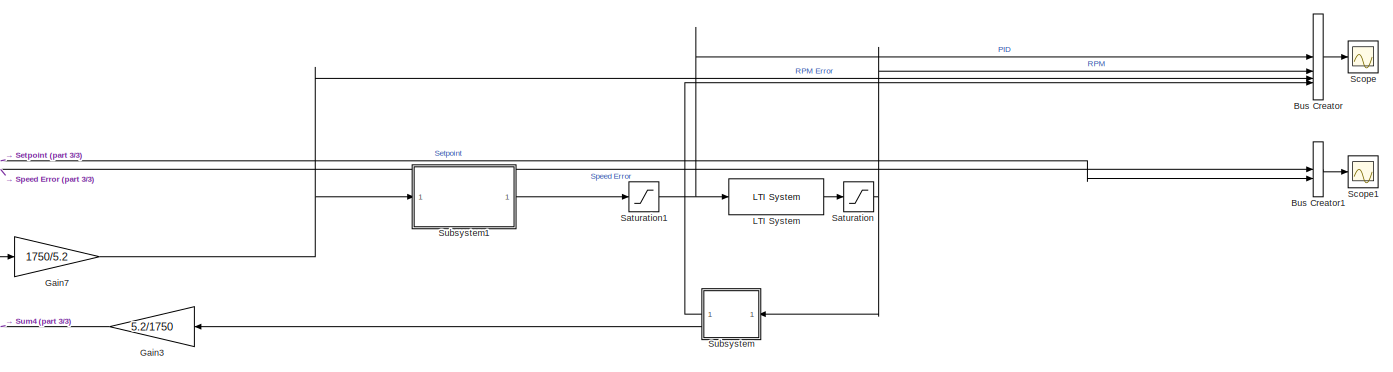
[diagram: root canvas - part 1/3, center side, full height]
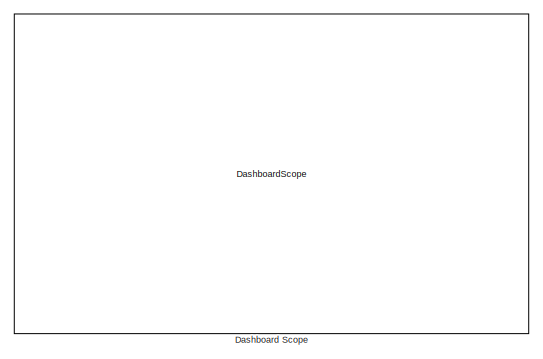
[diagram: root canvas - part 2/3, right side, full height]
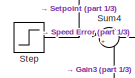
[diagram: root canvas - part 3/3, middle left region]
MODEL slx_830bfff2ffd4
KIND model
CONFIG AbsTol = auto
CONFIG EnableMultiTasking = off
CONFIG FixedStep = auto
CONFIG MaxStep = auto
CONFIG MinStep = auto
CONFIG RelTol = 1e-3
CONFIG SampleTimeConstraint = Unconstrained
CONFIG SolverName = VariableStepAuto
CONFIG StartTime = 0.0
CONFIG StopTime = 100
BLOCK [BusCreator] Bus Creator
  DisplayOption = bar
  InheritFromInputs = on
  Inputs = 4
BLOCK [BusCreator] Bus Creator1
  DisplayOption = bar
  InheritFromInputs = on
  Inputs = 2
BLOCK [DashboardScope] Dashboard Scope
BLOCK [Gain] Gain3
  Gain = 5.2/1750
  NameLocation = top
BLOCK [Gain] Gain7
  Gain = 1750/5.2
BLOCK [Reference] LTI System  REF=cstblocks/LTI System
  SourceBlock = cstblocks/LTI System
  SourceType = LTI Block
BLOCK [Saturate] Saturation
  LowerLimit = 900
  UpperLimit = 3600
BLOCK [Saturate] Saturation1
  LowerLimit = -1
  UpperLimit = 10000
BLOCK [Scope] Scope
  Floating = off
  NumInputPorts = 1
  ScopeSpecificationString = Simulink.scopes.TimeScopeBlockCfg('CurrentConfiguration', extmgr.ConfigurationSet(extmgr.Configuration('Core','General UI',true),extmgr.Configuration('Core','Source UI',true),extmgr.Configuration('Sources','WiredSimulink',true),extmgr.Configuration('Visuals','Time Domain',true,'SerializedDisplays',{struct('MinYLimReal','-1310.09418','MaxYLimReal','2790.84766','YLabelReal','','MinYLimMag','  0.0000...<+1579ch>
BLOCK [Scope] Scope1
  Floating = off
  NumInputPorts = 1
  ScopeSpecificationString = Simulink.scopes.TimeScopeBlockCfg('CurrentConfiguration', extmgr.ConfigurationSet(extmgr.Configuration('Core','General UI',true),extmgr.Configuration('Core','Source UI',true),extmgr.Configuration('Sources','WiredSimulink',true,'DataLoggingVariableName','ScopeData1'),extmgr.Configuration('Visuals','Time Domain',true,'SerializedDisplays',{struct('MinYLimReal','-3.88357','MaxYLimReal','8.20929','YLab...<+1432ch>
BLOCK [Step] Step
  After = 7
  SampleTime = 0
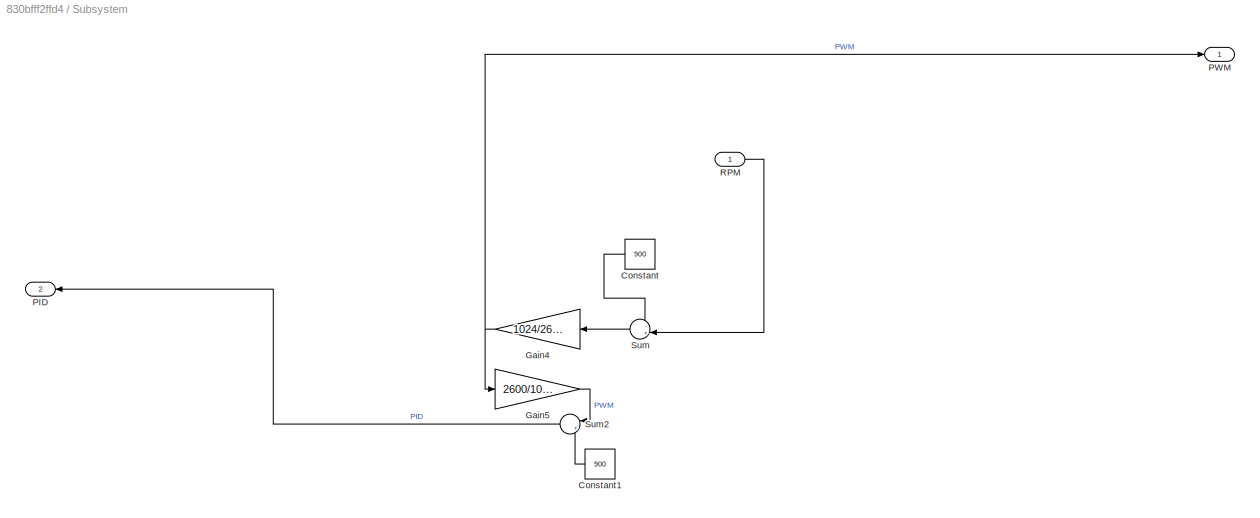
BLOCK [SubSystem] Subsystem
  NameLocation = top
BLOCK [Constant] Subsystem/Constant
  Value = 900
BLOCK [Constant] Subsystem/Constant1
  Value = 900
BLOCK [Gain] Subsystem/Gain4
  Gain = 1024/2600
BLOCK [Gain] Subsystem/Gain5
  Gain = 2600/1024
  NameLocation = top
BLOCK [Outport] Subsystem/PID
  Port = 2
BLOCK [Outport] Subsystem/PWM
BLOCK [Inport] Subsystem/RPM
BLOCK [Sum] Subsystem/Sum
  Inputs = -+|
BLOCK [Sum] Subsystem/Sum2
  Inputs = |++
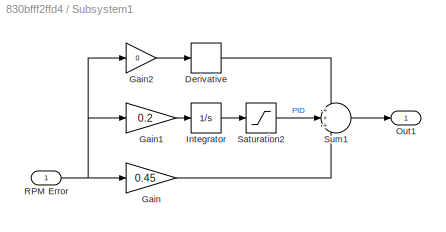
BLOCK [SubSystem] Subsystem1
BLOCK [Derivative] Subsystem1/Derivative
BLOCK [Gain] Subsystem1/Gain
  Gain = 0.45
BLOCK [Gain] Subsystem1/Gain1
  Gain = 0.2
BLOCK [Gain] Subsystem1/Gain2
  Gain = 0
BLOCK [Integrator] Subsystem1/Integrator
BLOCK [Outport] Subsystem1/Out1
BLOCK [Inport] Subsystem1/RPM Error
BLOCK [Saturate] Subsystem1/Saturation2
  LowerLimit = 0
  UpperLimit = 10000
BLOCK [Sum] Subsystem1/Sum1
  Inputs = +++
BLOCK [Sum] Sum4
  Inputs = |+-
LINE Bus Creator1:1 -> Scope1:1
LINE Bus Creator:1 -> Scope:1
LINE Gain3:1 -> Sum4:2
NET Gain7:1 -> Bus Creator:3, Subsystem1:1
LINE LTI System:1 -> Saturation:1
NET Saturation1:1 -> Bus Creator:1, LTI System:1
NET Saturation:1 -> Bus Creator:2, Subsystem:1
NET Step:1 -> Bus Creator1:2, Sum4:1
LINE Subsystem/Constant1:1 -> Subsystem/Sum2:2
LINE Subsystem/Constant:1 -> Subsystem/Sum:1
NET Subsystem/Gain4:1 -> Subsystem/Gain5:1, Subsystem/PWM:1
LINE Subsystem/Gain5:1 -> Subsystem/Sum2:1
LINE Subsystem/RPM:1 -> Subsystem/Sum:2
LINE Subsystem/Sum2:1 -> Subsystem/PID:1
LINE Subsystem/Sum:1 -> Subsystem/Gain4:1
LINE Subsystem1/Derivative:1 -> Subsystem1/Sum1:1
LINE Subsystem1/Gain1:1 -> Subsystem1/Integrator:1
LINE Subsystem1/Gain2:1 -> Subsystem1/Derivative:1
LINE Subsystem1/Gain:1 -> Subsystem1/Sum1:3
LINE Subsystem1/Integrator:1 -> Subsystem1/Saturation2:1
NET Subsystem1/RPM Error:1 -> Subsystem1/Gain1:1, Subsystem1/Gain2:1, Subsystem1/Gain:1
LINE Subsystem1/Saturation2:1 -> Subsystem1/Sum1:2
LINE Subsystem1/Sum1:1 -> Subsystem1/Out1:1
LINE Subsystem1:1 -> Saturation1:1
LINE Subsystem:1 -> Bus Creator:4
LINE Subsystem:2 -> Gain3:1
NET Sum4:1 -> Bus Creator1:1, Gain7:1
note: NET lines group one-source signal fan-out (src -> all destinations, sorted); 1:1 wires keep LINE
